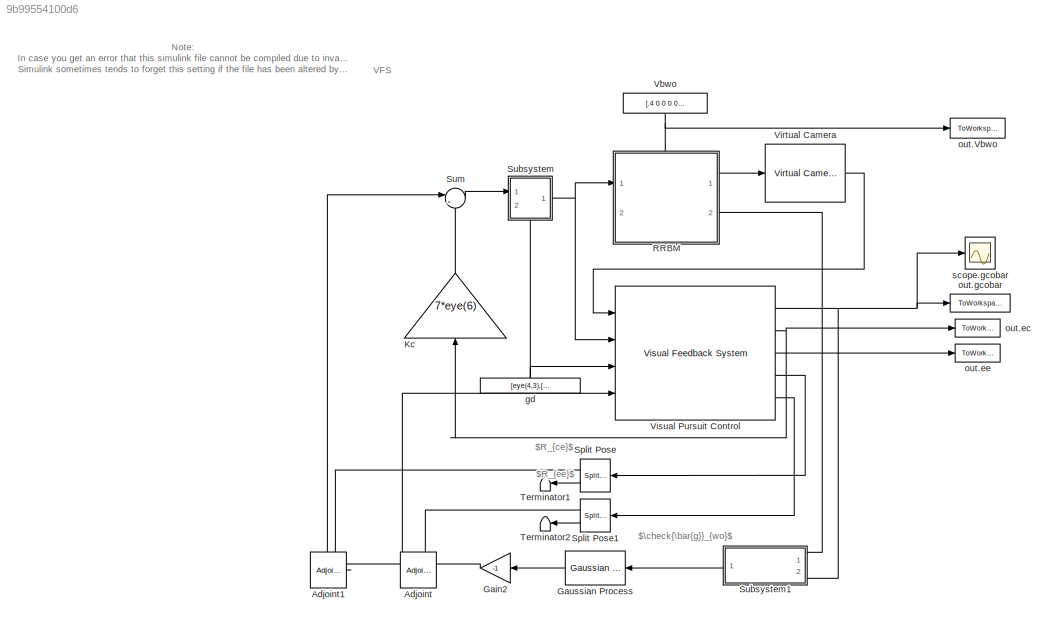
MODEL slx_9b99554100d6
KIND model
CONFIG AbsTol = auto
CONFIG EnableMultiTasking = off
CONFIG FixedStep = 0.001
CONFIG MaxStep = auto
CONFIG MinStep = auto
CONFIG RelTol = 1e-3
CONFIG SampleTimeConstraint = Unconstrained
CONFIG SolverName = VariableStepAuto
CONFIG StartTime = 0.0
CONFIG StopTime = 20
WORKSPACE source: mxarray member
WORKSPACE lambda = 20
WORKSPACE po = [0 0.5 0 -0.5 0 0 0 0 0.5 0 -0.5 0]
BLOCK [Reference] Adjoint  REF=simlib_vpc_basic/Adjoint
  Ports = [2, 1]
  SourceBlock = simlib_vpc_basic/Adjoint
  SourceProductName = VPC Library
  SourceType = Adjoint Matrix [V1]
BLOCK [Reference] Adjoint1  REF=simlib_vpc_basic/Adjoint
  Ports = [2, 1]
  SourceBlock = simlib_vpc_basic/Adjoint
  SourceProductName = VPC Library
  SourceType = Adjoint Matrix [V1]
BLOCK [Gain] Gain2
  Gain = -1
  NameLocation = top
BLOCK [Reference] Gaussian Process  REF=simlib_vpc_gp/Gaussian Process
  Ports = [1, 1]
  SourceBlock = simlib_vpc_gp/Gaussian Process
  SourceProductName = VPC Library
  SourceType = Gaussian Process [V1]
BLOCK [Gain] Kc
  Gain = 7*eye(6)
  Multiplication = Matrix(K*u) (u vector)
  NameLocation = left
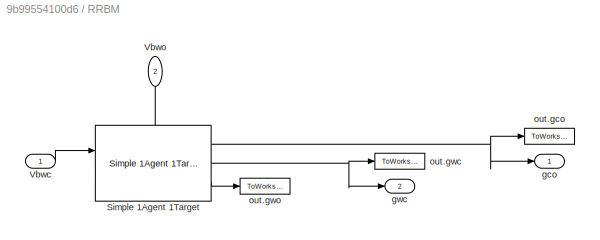
BLOCK [SubSystem] RRBM
  PortSchema = {"entries":[{"content":{"sides":[{"content":{"connectorIds":["In1"]},"type":"ConnectorPlacement.EquallySpacedRectSide","uuid":"ce1006a6-ff18-4db7-ad69-3a60144a672f"},{"content":{"connectorIds":["Out1","Out2"],"side":"RIGHT"},"type":"ConnectorPlacement.EquallySpacedRectSide","uuid":"9f6b7cf2-eb23-4db0-862a-f9244538bf77"},{"content":{"connectorIds":["In2"],"side":"TOP"},"type":"ConnectorPlacement.Eq...<+396ch>
  Ports = [2, 2]
  RequestExecContextInheritance = off
BLOCK [Reference] RRBM/Simple 1Agent 1Target  REF=simlib_vpc_basic/Simple 1Agent 1Target
  Ports = [2, 3]
  SourceBlock = simlib_vpc_basic/Simple 1Agent 1Target
  SourceProductName = VPC Library
  SourceType = Simple 1Agent 1 Target block [V1]
BLOCK [Inport] RRBM/Vbwc
BLOCK [Inport] RRBM/Vbwo
  NameLocation = left
  Port = 2
BLOCK [Outport] RRBM/gco
  NameLocation = right
BLOCK [Outport] RRBM/gwc
  NameLocation = right
  Port = 2
BLOCK [ToWorkspace] RRBM/out.gco
  FixptAsFi = on
  MaxDataPoints = inf
  NameLocation = right
  Ports = [1]
  SampleTime = -1
  SaveFormat = Structure With Time
  VariableName = gco
BLOCK [ToWorkspace] RRBM/out.gwc
  FixptAsFi = on
  MaxDataPoints = inf
  NameLocation = right
  Ports = [1]
  SampleTime = -1
  SaveFormat = Structure With Time
  VariableName = gwc
BLOCK [ToWorkspace] RRBM/out.gwo
  FixptAsFi = on
  MaxDataPoints = inf
  NameLocation = right
  Ports = [1]
  SampleTime = -1
  SaveFormat = Structure With Time
  VariableName = gwo
BLOCK [Reference] Split Pose  REF=simlib_vpc_coremath/Split Pose
  NameLocation = top
  Ports = [1, 2]
  SourceBlock = simlib_vpc_coremath/Split Pose
  SourceProductName = VPC Library
  SourceType = Split pose [V1]
BLOCK [Reference] Split Pose1  REF=simlib_vpc_coremath/Split Pose
  NameLocation = top
  Ports = [1, 2]
  SourceBlock = simlib_vpc_coremath/Split Pose
  SourceProductName = VPC Library
  SourceType = Split pose [V1]
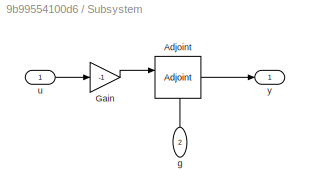
BLOCK [SubSystem] Subsystem
  PortSchema = {"entries":[{"content":{"sides":[{"content":{"connectorIds":["In1"]},"type":"ConnectorPlacement.EquallySpacedRectSide","uuid":"72e68008-5c4a-43a9-a560-64c6a31a0c08"},{"content":{"connectorIds":["Out1"],"side":"RIGHT"},"type":"ConnectorPlacement.EquallySpacedRectSide","uuid":"da07f5ff-2b2c-4c55-a2f2-34e133777503"},{"content":{"connectorIds":[],"side":"TOP"},"type":"ConnectorPlacement.EquallySpacedR...<+533ch>
  Ports = [2, 1]
  RequestExecContextInheritance = off
BLOCK [Reference] Subsystem/Adjoint  REF=simlib_vpc_basic/Adjoint
  NameLocation = top
  Ports = [2, 1]
  SourceBlock = simlib_vpc_basic/Adjoint
  SourceProductName = VPC Library
  SourceType = Adjoint Matrix [V1]
BLOCK [Gain] Subsystem/Gain
  Gain = -1
BLOCK [Inport] Subsystem/g
  NameLocation = right
  Port = 2
BLOCK [Inport] Subsystem/u
BLOCK [Outport] Subsystem/y
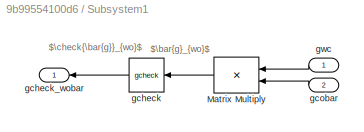
BLOCK [SubSystem] Subsystem1
  NameLocation = top
  Ports = [2, 1]
  RequestExecContextInheritance = off
BLOCK [Product] Subsystem1/Matrix Multiply
  Multiplication = Matrix(*)
  NameLocation = top
  Ports = [2, 1]
BLOCK [Reference] Subsystem1/gcheck  REF=simlib_vpc_coremath/gcheck
  NameLocation = top
  Ports = [1, 1]
  SourceBlock = simlib_vpc_coremath/gcheck
  SourceProductName = VPC Library
  SourceType = Check Transform [V1]
BLOCK [Outport] Subsystem1/gcheck_wobar
BLOCK [Inport] Subsystem1/gcobar
  NameLocation = right
  Port = 2
BLOCK [Inport] Subsystem1/gwc
  NameLocation = right
BLOCK [Sum] Sum
  Inputs = |+-
  Ports = [2, 1]
BLOCK [Terminator] Terminator1
BLOCK [Terminator] Terminator2
BLOCK [Constant] Vbwo
  NameLocation = right
  Value = [.4 0 0 0 0 -pi/6]
BLOCK [Reference] Virtual Camera  REF=simlib_vpc_basic/Virtual Camera
  Ports = [1, 1]
  SourceBlock = simlib_vpc_basic/Virtual Camera
  SourceProductName = VPC Library
  SourceType = Virtual Camera model [V1]
BLOCK [Reference] Visual Pursuit Control  REF=simlib_vpc_basic/Visual Feedback System
  Ports = [4, 5]
  SourceBlock = simlib_vpc_basic/Visual Feedback System
  SourceProductName = VPC Library
  SourceType = Visual Pursuit Control [V1]
BLOCK [Constant] gd
  NameLocation = right
  Value = [eye(4,3),[0 2 0 1]']
BLOCK [ToWorkspace] out.Vbwo
  FixptAsFi = on
  MaxDataPoints = inf
  NameLocation = right
  Ports = [1]
  SampleTime = -1
  SaveFormat = Structure With Time
  VariableName = Vbwo
BLOCK [ToWorkspace] out.ec
  FixptAsFi = on
  MaxDataPoints = inf
  NameLocation = right
  Ports = [1]
  SampleTime = -1
  SaveFormat = Structure With Time
  VariableName = ec
BLOCK [ToWorkspace] out.ee
  FixptAsFi = on
  MaxDataPoints = inf
  NameLocation = right
  Ports = [1]
  SampleTime = -1
  SaveFormat = Structure With Time
  VariableName = ee
BLOCK [ToWorkspace] out.gcobar
  FixptAsFi = on
  MaxDataPoints = inf
  NameLocation = right
  Ports = [1]
  SampleTime = -1
  SaveFormat = Structure With Time
  VariableName = gcobar
BLOCK [Scope] scope.gcobar
  Floating = off
  NameLocation = right
  NumInputPorts = 1
  Ports = [1]
  ScopeSpecificationString = Simulink.scopes.TimeScopeBlockCfg('CurrentConfiguration', extmgr.ConfigurationSet(extmgr.Configuration('Core','General UI',true),extmgr.Configuration('Core','Source UI',true),extmgr.Configuration('Sources','WiredSimulink',true),extmgr.Configuration('Visuals','Time Domain',true,'SerializedDisplays',{struct('MinYLimReal','-0.4173','MaxYLimReal','2.21403','YLabelReal','','MinYLimMag','0.00000','MaxYL...<+1835ch>
ANNOTATION (root): Note: In case you get an error that this simulink file cannot be compiled due to invalid constructs used in the GP block, ensure that the GP block inherits the fastest discrete sample time if you use a variable step solver! Simulink sometimes tends to forget this setting if the file has been altered by library block updates...
ANNOTATION (root): $R_{ee}$
ANNOTATION (root): $\check{\bar{g}}_{wo}$
ANNOTATION (root): $R_{ce}$
ANNOTATION (root): VFS
ANNOTATION Subsystem1: $\bar{g}_{wo}$
ANNOTATION Subsystem1: $\check{\bar{g}}_{wo}$
LINE Adjoint1:1 -> Sum:1
NET Adjoint:1 -> Adjoint1:1, Visual Pursuit Control:4
LINE Gain2:1 -> Adjoint:1
LINE Gaussian Process:1 -> Gain2:1
LINE Kc:1 -> Sum:2
NET RRBM/Simple 1Agent 1Target:1 -> RRBM/gco:1, RRBM/out.gco:1
NET RRBM/Simple 1Agent 1Target:2 -> RRBM/gwc:1, RRBM/out.gwc:1
LINE RRBM/Simple 1Agent 1Target:3 -> RRBM/out.gwo:1
LINE RRBM/Vbwc:1 -> RRBM/Simple 1Agent 1Target:1
LINE RRBM/Vbwo:1 -> RRBM/Simple 1Agent 1Target:2
LINE RRBM:1 -> Virtual Camera:1
LINE RRBM:2 -> Subsystem1:1
LINE Split Pose1:1 -> Adjoint:2
LINE Split Pose1:2 -> Terminator2:1
LINE Split Pose:1 -> Adjoint1:2
LINE Split Pose:2 -> Terminator1:1
LINE Subsystem/Adjoint:1 -> Subsystem/y:1
LINE Subsystem/Gain:1 -> Subsystem/Adjoint:1
LINE Subsystem/g:1 -> Subsystem/Adjoint:2
LINE Subsystem/u:1 -> Subsystem/Gain:1
LINE Subsystem1/Matrix Multiply:1 -> Subsystem1/gcheck:1
LINE Subsystem1/gcheck:1 -> Subsystem1/gcheck_wobar:1
LINE Subsystem1/gcobar:1 -> Subsystem1/Matrix Multiply:2
LINE Subsystem1/gwc:1 -> Subsystem1/Matrix Multiply:1
LINE Subsystem1:1 -> Gaussian Process:1
NET Subsystem:1 -> RRBM:1, Visual Pursuit Control:2
LINE Sum:1 -> Subsystem:1
NET Vbwo:1 -> RRBM:2, out.Vbwo:1
LINE Virtual Camera:1 -> Visual Pursuit Control:1
NET Visual Pursuit Control:1 -> Subsystem1:2, out.gcobar:1, scope.gcobar:1
NET Visual Pursuit Control:2 -> Kc:1, out.ec:1
LINE Visual Pursuit Control:3 -> out.ee:1
LINE Visual Pursuit Control:4 -> Split Pose:1
LINE Visual Pursuit Control:5 -> Split Pose1:1
NET gd:1 -> Subsystem:2, Visual Pursuit Control:3
note: NET lines group one-source signal fan-out (src -> all destinations, sorted); 1:1 wires keep LINE
